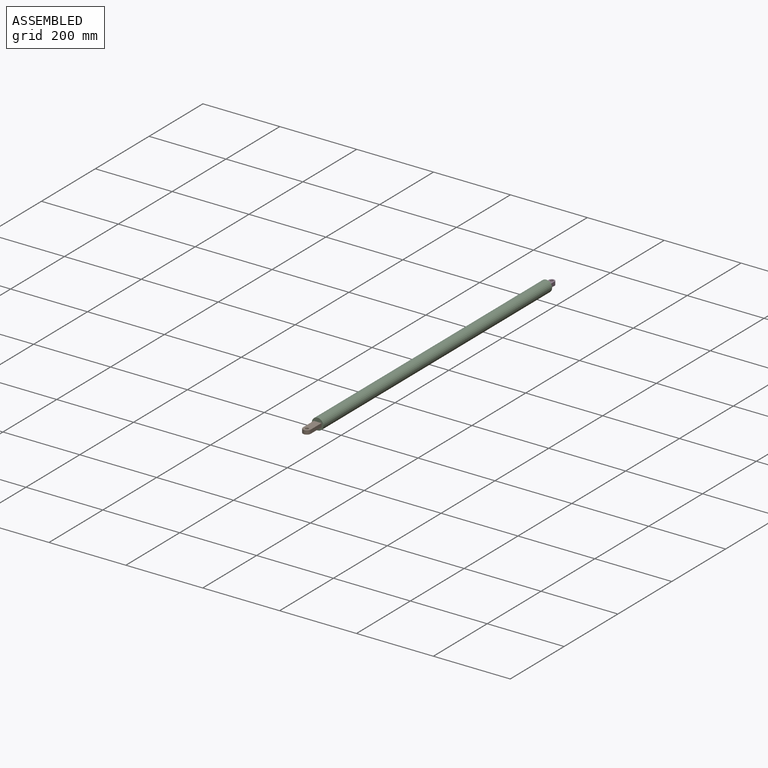
[diagram: assembled view]
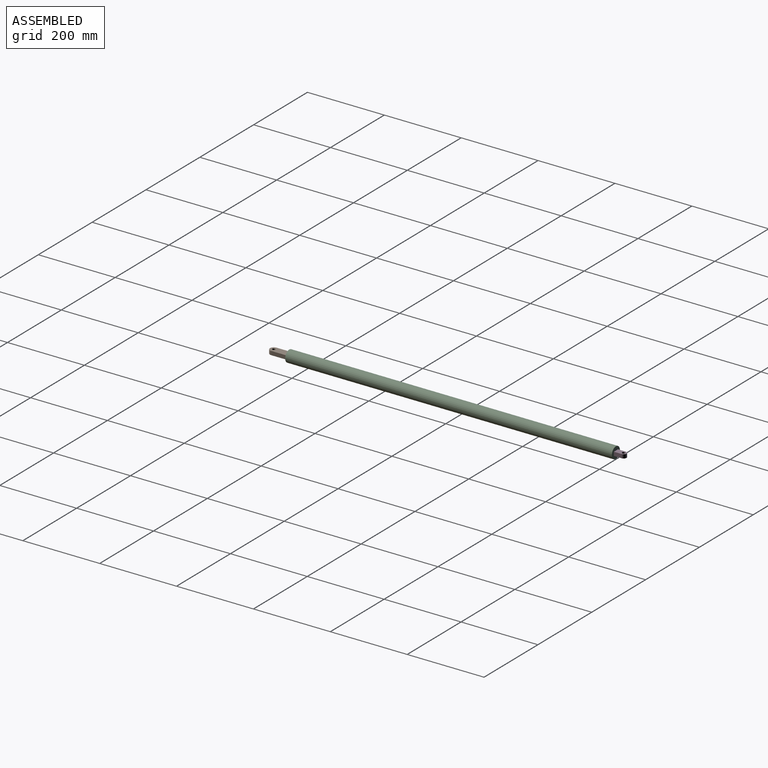
[diagram: assembled view, second angle]
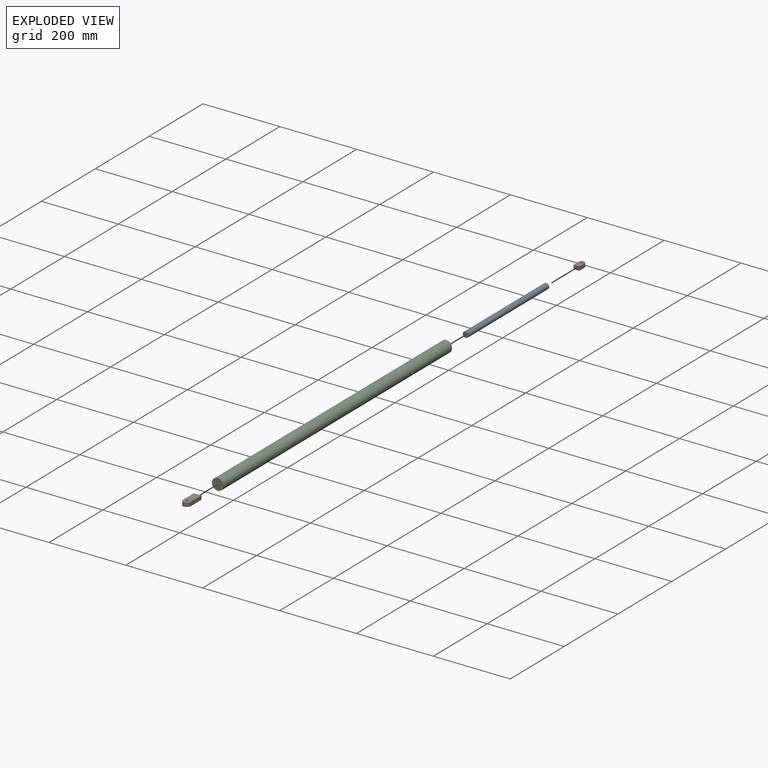
[diagram: exploded view]
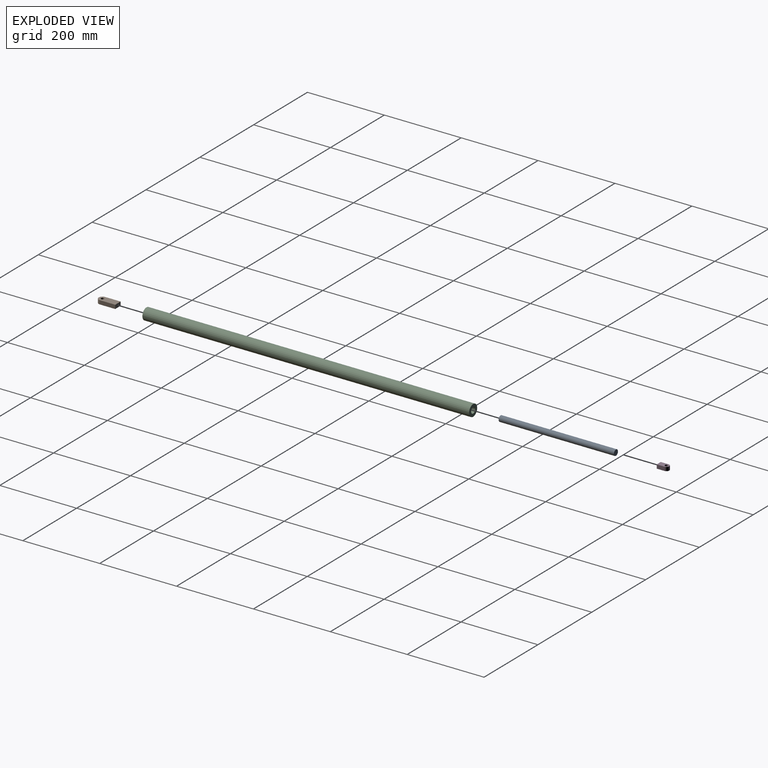
[diagram: exploded view, second angle]
ASSEMBLY  parts=4 mates=3
PART A: 3 faces, bbox 15x300x15 mm
  f0: cylinder r=7.5mm len=300mm, axis (0,1,0), area 14137.2mm2, adj f1,f2
  f1: plane 15x15mm, normal (0,-1,0), area 176.7mm2, adj f0
  f2: plane 15x15mm, normal (0,1,0), area 176.7mm2, adj f0
PART B: 7 faces, bbox 20x10x50 mm
  f0: plane 20x10mm, normal (0,0,-1), area 200mm2, adj f1,f3,f5,f6
  f1: plane 40x10mm, normal (1,0,0), area 400mm2, adj f0,f2,f5,f6
  f2: cylinder r=10mm len=20mm, axis (0,1,0), area 314.2mm2, adj f1,f3,f5,f6
  f3: plane 40x10mm, normal (-1,0,0), area 400mm2, adj f0,f2,f5,f6
  f4: cylinder r=4mm len=10mm, axis (0,1,0), area 251.3mm2, adj f5,f6
  f5: plane 50x20mm, normal (0,-1,0), area 906.8mm2, adj f0,f1,f2,f3,f4
  f6: plane 50x20mm, normal (0,1,0), area 906.8mm2, adj f0,f1,f2,f3,f4
PART C: 5 faces, bbox 30x850x30 mm
  f0: cylinder r=15mm len=850mm, axis (0,1,0), area 80110.6mm2, adj f1,f2
  f1: plane 30x30mm, normal (0,-1,0), area 706.9mm2, adj f0
  f2: plane 30x30mm, normal (0,1,0), area 530.1mm2, adj f0,f3
  f3: cylinder r=7.5mm len=15mm, axis (0,1,0), area 471.2mm2, adj f2,f4
  f4: plane 15x15mm, normal (0,1,0), area 176.7mm2, adj f3
PART D: 7 faces, bbox 15x10x27.5 mm
  f0: plane 20x10mm, normal (1,0,0), area 200mm2, adj f1,f4,f5,f6
  f1: cylinder r=7.5mm len=15mm, axis (0,1,0), area 235.6mm2, adj f0,f2,f5,f6
  f2: plane 20x10mm, normal (-1,0,0), area 200mm2, adj f1,f4,f5,f6
  f3: cylinder r=4mm len=10mm, axis (0,1,0), area 251.3mm2, adj f5,f6
  f4: plane 15x10mm, normal (0,0,-1), area 150mm2, adj f0,f2,f5,f6
  f5: plane 27.5x15mm, normal (0,-1,0), area 338.1mm2, adj f0,f1,f2,f3,f4
  f6: plane 27.5x15mm, normal (0,1,0), area 338.1mm2, adj f0,f1,f2,f3,f4
PLACE A t=(162.23,-183.55,186.58)mm
PLACE B rot(axis=(1,0,0),90deg) t=(162.23,-1053.55,191.58)mm
PLACE C t=(162.23,-183.55,186.58)mm fixed
PLACE D rot(axis=(-1,0,0),90deg) t=(162.23,-163.55,181.58)mm
MATE fastened B.f0 <-> C.f0  axis (0,1,0) through (162.23,-1033.55,186.58)mm
MATE cylindrical C.f0 <-> A.f0  axis (0,1,0) through (162.23,-183.55,186.58)mm
MATE fastened A.f0 <-> D.f4  axis (0,1,0) through (162.23,-183.55,186.58)mm
